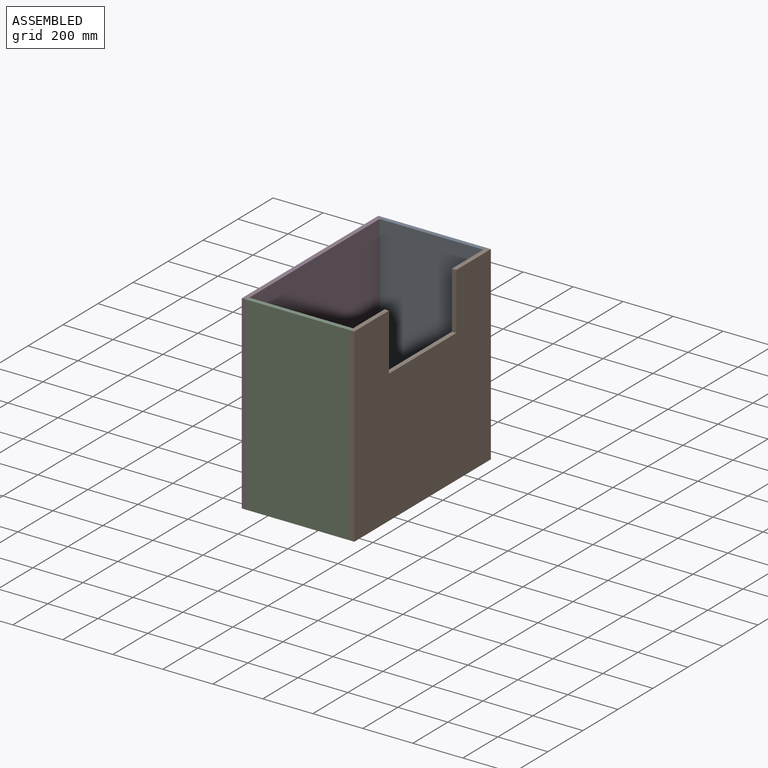
[diagram: assembled view]
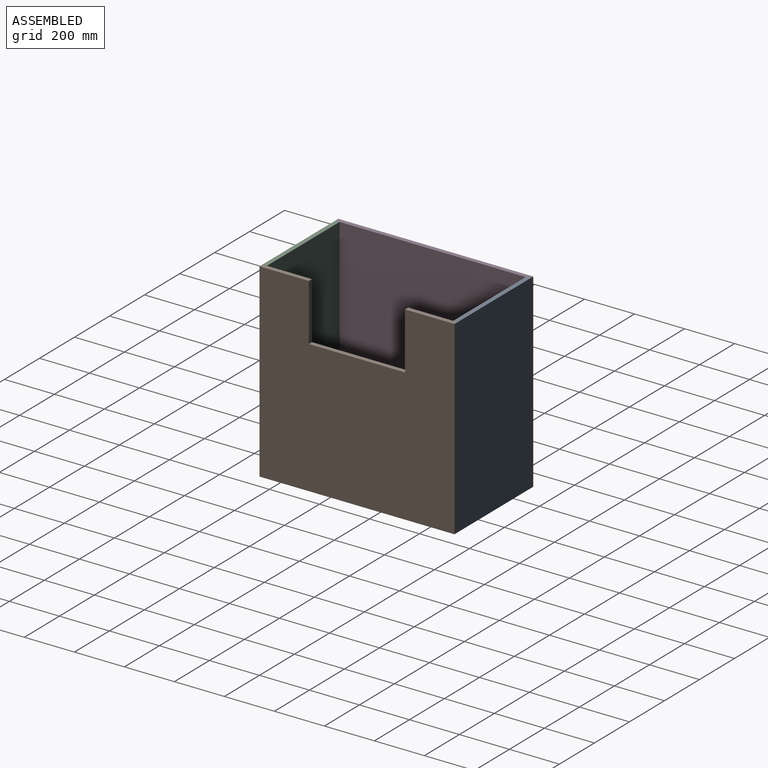
[diagram: assembled view, second angle]
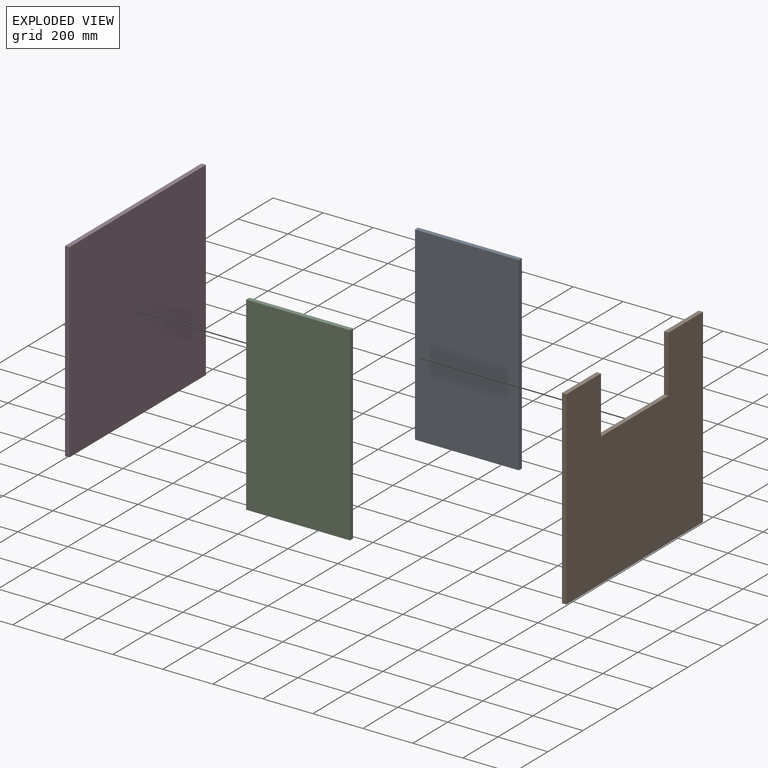
[diagram: exploded view]
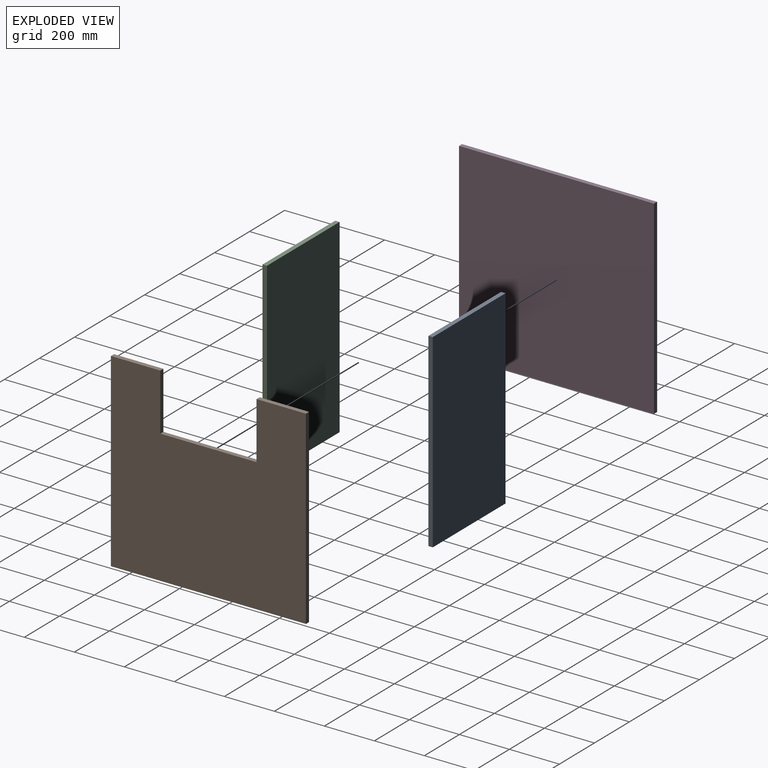
[diagram: exploded view, second angle]
ASSEMBLY  parts=4 mates=3
PART A: 6 faces, bbox 17.6x415x760 mm
  f0: plane 415x17.6mm, normal (0,0,1), area 7304mm2, adj f1,f3,f4,f5
  f1: plane 760x17.6mm, normal (0,-1,0), area 13376mm2, adj f0,f2,f4,f5
  f2: plane 415x17.6mm, normal (0,0,-1), area 7304mm2, adj f1,f3,f4,f5
  f3: plane 760x17.6mm, normal (0,1,0), area 13376mm2, adj f0,f2,f4,f5
  f4: plane 760x415mm, normal (1,0,0), area 315400mm2, adj f0,f1,f2,f3
  f5: plane 760x415mm, normal (-1,0,0), area 315400mm2, adj f0,f1,f2,f3
PART B: 10 faces, bbox 17.6x780x760 mm
  f0: plane 760x17.6mm, normal (0,1,0), area 13376mm2, adj f1,f7,f8,f9
  f1: plane 197.5x17.6mm, normal (0,0,1), area 3476mm2, adj f0,f2,f8,f9
  f2: plane 228x17.6mm, normal (0,-1,0), area 4012.8mm2, adj f1,f3,f8,f9
  f3: plane 385x17.6mm, normal (0,0,1), area 6776mm2, adj f2,f4,f8,f9
  f4: plane 228x17.6mm, normal (0,1,0), area 4012.8mm2, adj f3,f5,f8,f9
  f5: plane 197.5x17.6mm, normal (0,0,1), area 3476mm2, adj f4,f6,f8,f9
  f6: plane 760x17.6mm, normal (0,-1,0), area 13376mm2, adj f5,f7,f8,f9
  f7: plane 780x17.6mm, normal (0,0,-1), area 13728mm2, adj f0,f6,f8,f9
  f8: plane 780x760mm, normal (-1,0,0), area 505020mm2, adj f0,f1,f2,f3,f4,f5,f6,f7
  f9: plane 780x760mm, normal (1,0,0), area 505020mm2, adj f0,f1,f2,f3,f4,f5,f6,f7
PART C: same geometry as A
PART D: 6 faces, bbox 17.6x780x760 mm
  f0: plane 780x17.6mm, normal (0,0,1), area 13728mm2, adj f1,f3,f4,f5
  f1: plane 760x17.6mm, normal (0,-1,0), area 13376mm2, adj f0,f2,f4,f5
  f2: plane 780x17.6mm, normal (0,0,-1), area 13728mm2, adj f1,f3,f4,f5
  f3: plane 760x17.6mm, normal (0,1,0), area 13376mm2, adj f0,f2,f4,f5
  f4: plane 780x760mm, normal (1,0,0), area 592800mm2, adj f0,f1,f2,f3
  f5: plane 780x760mm, normal (-1,0,0), area 592800mm2, adj f0,f1,f2,f3
PLACE A rot(axis=(0.71,-0.71,0),180deg) t=(-256.16,118.44,90.19)mm
PLACE B t=(-31.06,-271.56,90.19)mm
PLACE C rot(axis=(0.71,-0.71,0),180deg) t=(-256.16,-643.96,90.19)mm
PLACE D rot(axis=(0,1,0),180deg) t=(-463.66,-271.56,90.19)mm
MATE fastened C.f1 <-> B.f8  axis (1,0,0) through (-48.66,-652.76,90.19)mm
MATE fastened D.f5 <-> A.f3  axis (1,0,0) through (-463.66,118.44,90.19)mm
MATE fastened A.f1 <-> B.f8  axis (1,0,0) through (-48.66,109.64,90.19)mm
